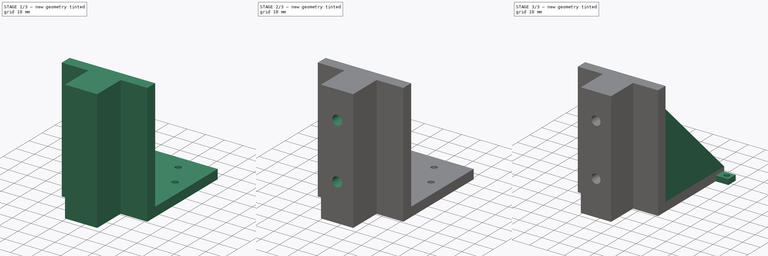
[diagram: build sequence overview — one tinted view per stage of 3, left to right]
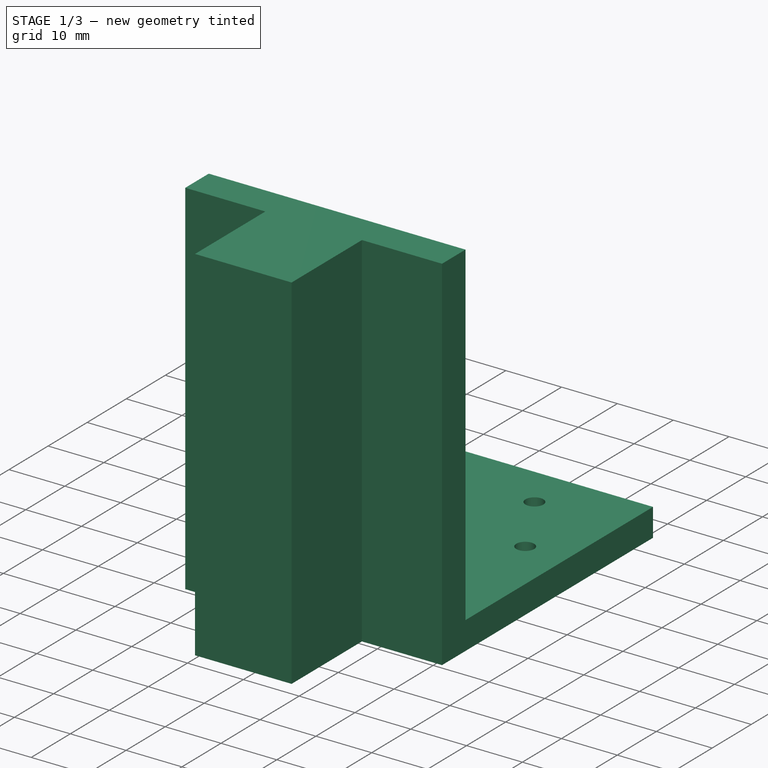
[diagram: stage 1 of 3 — iso view after this stage's code; geometry added in this stage tinted green]
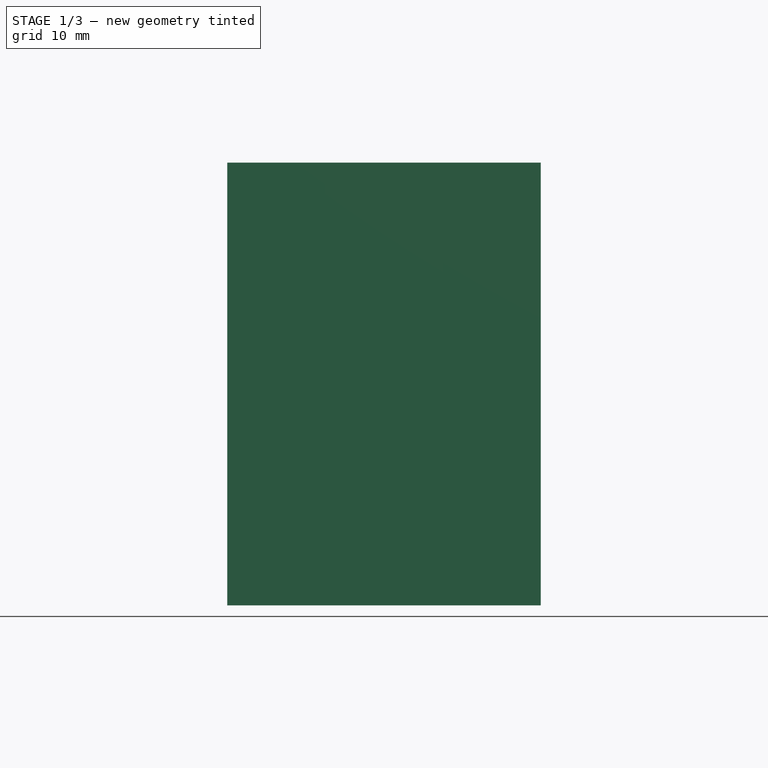
[diagram: stage 1 of 3 — front view after this stage's code; geometry added in this stage tinted green]
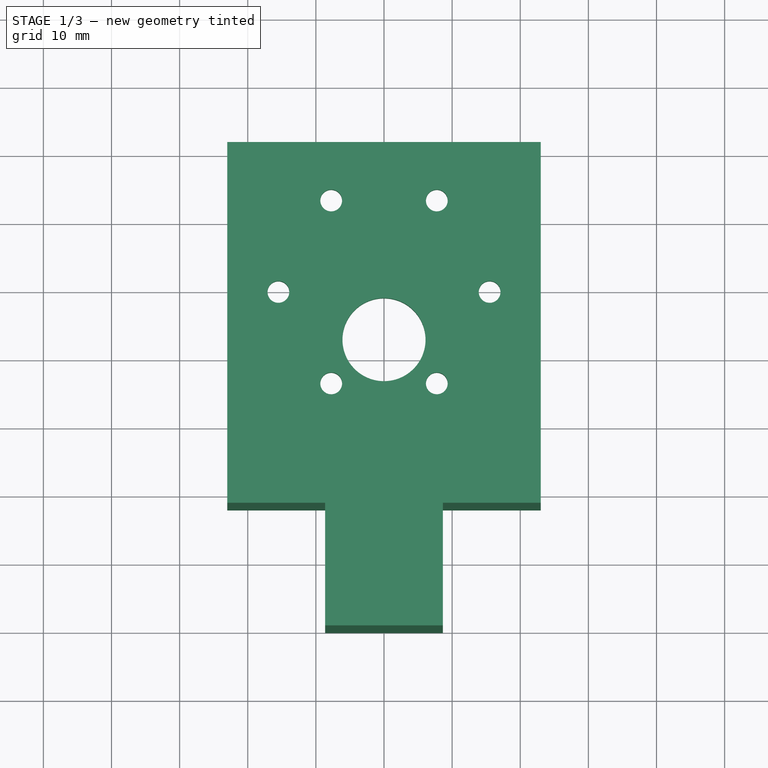
[diagram: stage 1 of 3 — top view after this stage's code; geometry added in this stage tinted green]
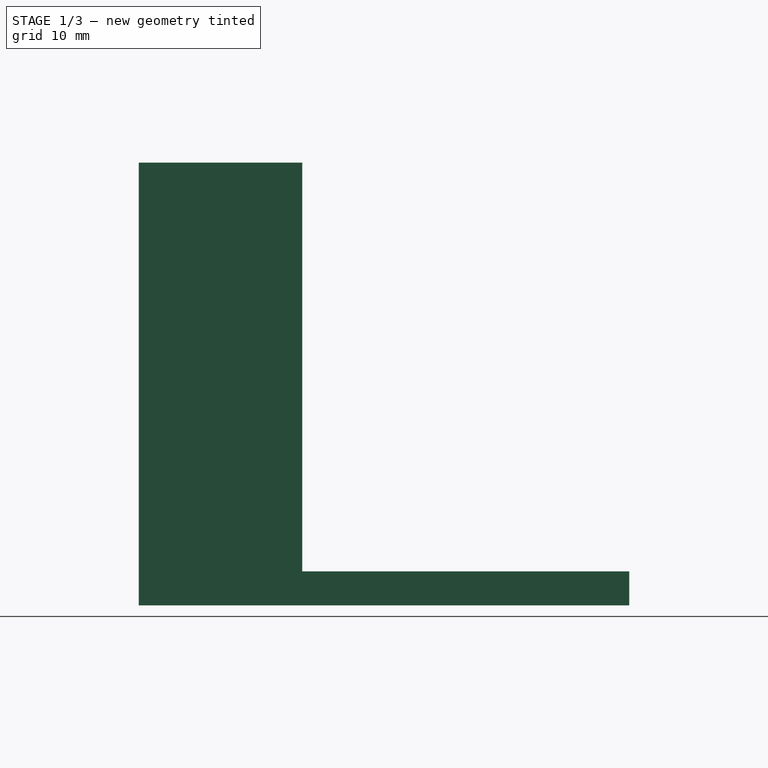
[diagram: stage 1 of 3 — right view after this stage's code; geometry added in this stage tinted green]
FCSTD DOCUMENT  (FreeCAD 0.16R)
Label: motor_holder
License: All rights reserved
LicenseURL: http://en.wikipedia.org/wiki/All_rights_reserved
objects: Sketcher::SketchObject×8, PartDesign::Pad×6, PartDesign::Pocket×2
note: 24 computed .brp shape members not serialized (recipe doc carries the construction recipe); baked Part::Feature solids carry a one-line shape summary decoded from their .brp

FEATURE [Sketcher::SketchObject] Sketch
  sketch-geometry (18):
    g0: LineSegment StartX=-23 StartY=22 StartZ=0 EndX=23 EndY=22 EndZ=0
    g1: LineSegment StartX=23 StartY=22 StartZ=0 EndX=23 EndY=-26 EndZ=0
    g2: LineSegment StartX=23 StartY=-26 StartZ=0 EndX=-23 EndY=-26 EndZ=0
    g3: LineSegment StartX=-23 StartY=-26 StartZ=0 EndX=-23 EndY=22 EndZ=0
    g4: LineSegment [constr] StartX=15.5 StartY=0 StartZ=0 EndX=7.75 EndY=13.4234 EndZ=0
    g5: LineSegment [constr] StartX=7.75 StartY=13.4234 StartZ=0 EndX=-7.75 EndY=13.4234 EndZ=0
    g6: LineSegment [constr] StartX=-7.75 StartY=13.4234 StartZ=0 EndX=-15.5 EndY=0 EndZ=0
    g7: LineSegment [constr] StartX=-15.5 StartY=0 StartZ=0 EndX=-7.75 EndY=-13.4234 EndZ=0
    g8: LineSegment [constr] StartX=-7.75 StartY=-13.4234 StartZ=0 EndX=7.75 EndY=-13.4234 EndZ=0
    g9: LineSegment [constr] StartX=7.75 StartY=-13.4234 StartZ=0 EndX=15.5 EndY=0 EndZ=0
    g10: Circle [constr] CenterX=0 CenterY=0 CenterZ=0 NormalX=0 NormalY=0 NormalZ=1 Radius=15.5
    g11: Circle CenterX=-7.75 CenterY=13.4234 CenterZ=0 NormalX=0 NormalY=0 NormalZ=1 Radius=1.6
    g12: Circle CenterX=7.75 CenterY=13.4234 CenterZ=0 NormalX=0 NormalY=0 NormalZ=1 Radius=1.6
    g13: Circle CenterX=-15.5 CenterY=0 CenterZ=0 NormalX=0 NormalY=0 NormalZ=1 Radius=1.6
    g14: Circle CenterX=-7.75 CenterY=-13.4234 CenterZ=0 NormalX=0 NormalY=0 NormalZ=1 Radius=1.6
    g15: Circle CenterX=7.75 CenterY=-13.4234 CenterZ=0 NormalX=0 NormalY=0 NormalZ=1 Radius=1.6
    g16: Circle CenterX=15.5 CenterY=0 CenterZ=0 NormalX=0 NormalY=0 NormalZ=1 Radius=1.6
    g17: Circle CenterX=0 CenterY=-7 CenterZ=0 NormalX=0 NormalY=0 NormalZ=1 Radius=6.1
  constraints (43):
    c: Coincident(g0,g1)
    c: Coincident(g1,g2)
    c: Coincident(g2,g3)
    c: Coincident(g3,g0)
    c: Horizontal(g0)
    c: Horizontal(g2)
    c: Vertical(g1)
    c: Vertical(g3)
    c: Symmetric(g0,g0,g-2)
    c: DistanceX(g0,g0) = 46
    c: DistanceY(g3,g3) = 48
    c: Coincident(g4,g5)
    c: Coincident(g5,g6)
    c: Coincident(g6,g7)
    c: Coincident(g7,g8)
    c: Coincident(g8,g9)
    c: Coincident(g9,g4)
    c: Equal(g4, g5-g9) x5
    c: PointOnObject(g4,g10)
    c: PointOnObject(g5,g10)
    c: PointOnObject(g6,g10)
    c: PointOnObject(g7,g10)
    c: PointOnObject(g8,g10)
    c: PointOnObject(g9,g10)
    c: Coincident(g10,g-1)
    c: Horizontal(g8)
    c: Radius(g10) = 15.5
    c: DistanceY(g0) = 22
    c: Coincident(g11,g5)
    c: Coincident(g12,g4)
    c: Coincident(g13,g6)
    c: Coincident(g14,g7)
    c: Coincident(g15,g8)
    c: Coincident(g16,g4)
    c: Equal(g11,g12)
    c: Equal(g12,g13)
    c: Equal(g13,g16)
    c: Equal(g16,g15)
    c: Equal(g15,g14)
    c: Radius(g12) = 1.6
    c: PointOnObject(g17,g-2)
    c: DistanceY(g17) = -7
    c: Radius(g17) = 6.1
FEATURE [PartDesign::Pad] Pad
  Length = 5
  Length2 = 100
  Sketch = -> Sketch
  Type = 0
FEATURE [Sketcher::SketchObject] Sketch001
  ExternalGeometry = -> [Pad]
  Placement = pos=(0,0,5) rot=(0,0,1;0rad)
  Support = -> Pad [Face13]
  sketch-geometry (4):
    g0: LineSegment StartX=-23 StartY=-26 StartZ=0 EndX=23 EndY=-26 EndZ=0
    g1: LineSegment StartX=23 StartY=-26 StartZ=0 EndX=23 EndY=-32 EndZ=0
    g2: LineSegment StartX=23 StartY=-32 StartZ=0 EndX=-23 EndY=-32 EndZ=0
    g3: LineSegment StartX=-23 StartY=-32 StartZ=0 EndX=-23 EndY=-26 EndZ=0
  constraints (11):
    c: Coincident(g0,g1)
    c: Coincident(g1,g2)
    c: Coincident(g2,g3)
    c: Coincident(g3,g0)
    c: Horizontal(g0)
    c: Horizontal(g2)
    c: Vertical(g1)
    c: Vertical(g3)
    c: Coincident(g0,g-3)
    c: Coincident(g0,g-3)
    c: DistanceY(g1,g1) = -6
FEATURE [PartDesign::Pad] Pad001
  Length = 60
  Length2 = 5
  Sketch = -> Sketch001
  Type = 4
FEATURE [Sketcher::SketchObject] Sketch002
  ExternalGeometry = -> [Pad001]
  Placement = pos=(0,-32,0) rot=(1,0,0;1.5708rad)
  Support = -> Pad001 [Face17]
  sketch-geometry (4):
    g0: LineSegment StartX=-8.65 StartY=65 StartZ=0 EndX=8.65 EndY=65 EndZ=0
    g1: LineSegment StartX=8.65 StartY=65 StartZ=0 EndX=8.65 EndY=0 EndZ=0
    g2: LineSegment StartX=8.65 StartY=0 StartZ=0 EndX=-8.65 EndY=0 EndZ=0
    g3: LineSegment StartX=-8.65 StartY=0 StartZ=0 EndX=-8.65 EndY=65 EndZ=0
  constraints (12):
    c: Coincident(g0,g1)
    c: Coincident(g1,g2)
    c: Coincident(g2,g3)
    c: Coincident(g3,g0)
    c: Horizontal(g0)
    c: Horizontal(g2)
    c: Vertical(g1)
    c: Vertical(g3)
    c: PointOnObject(g1,g-1)
    c: PointOnObject(g0,g-3)
    c: Symmetric(g0,g0,g-2)
    c: DistanceX(g2,g2) = 17.3
FEATURE [PartDesign::Pad] Pad002
  Length = 18
  Length2 = 100
  Sketch = -> Sketch002
  Type = 0
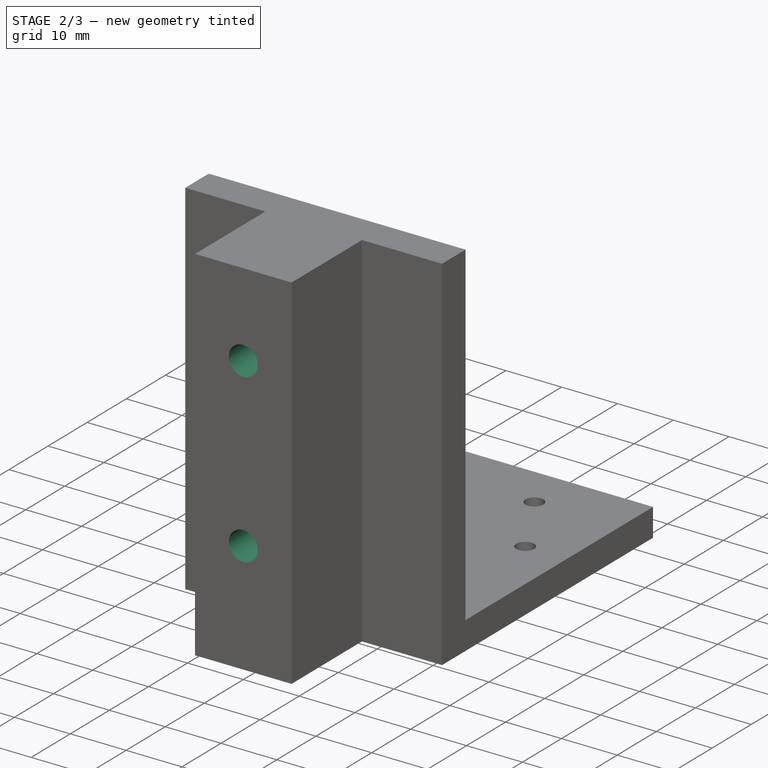
[diagram: stage 2 of 3 — iso view after this stage's code; geometry added in this stage tinted green]
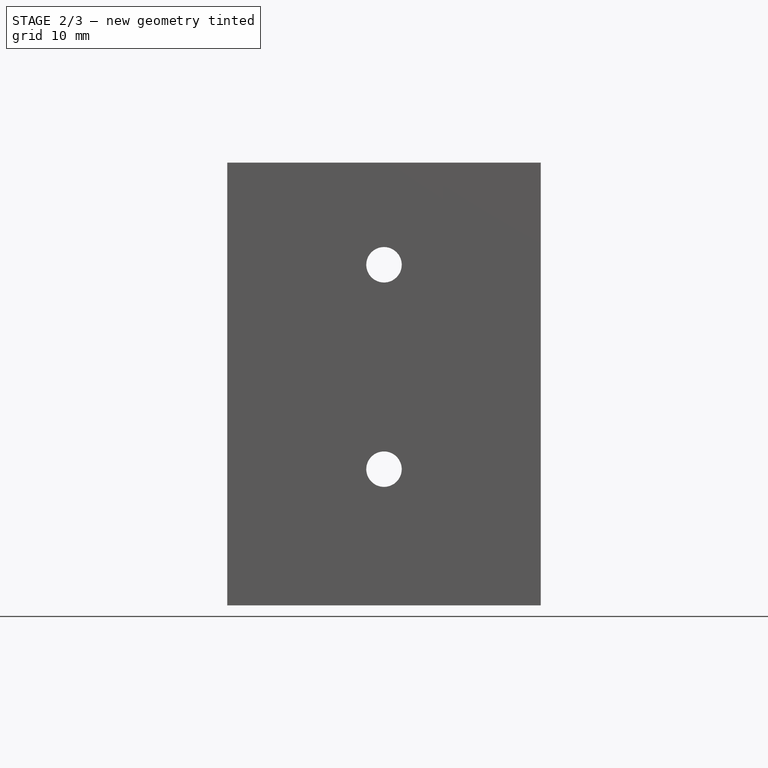
[diagram: stage 2 of 3 — front view after this stage's code; geometry added in this stage tinted green]
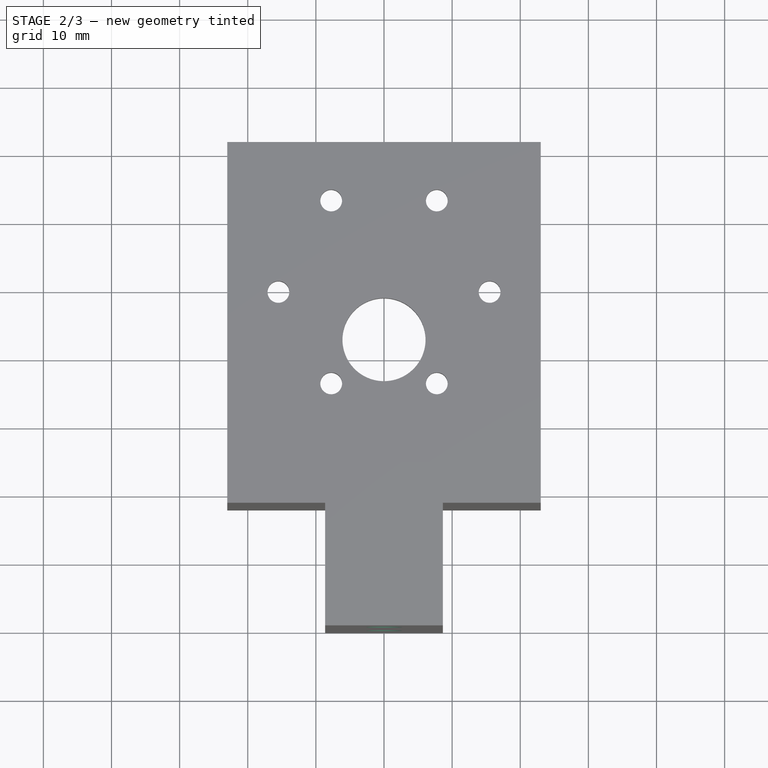
[diagram: stage 2 of 3 — top view after this stage's code; geometry added in this stage tinted green]
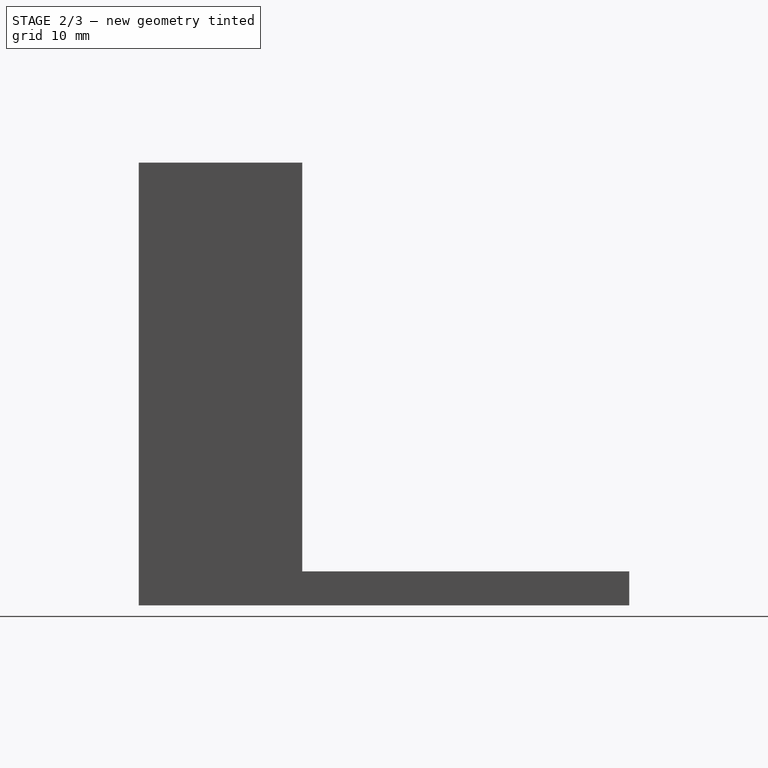
[diagram: stage 2 of 3 — right view after this stage's code; geometry added in this stage tinted green]
FEATURE [Sketcher::SketchObject] Sketch003
  Placement = pos=(0,-26,0) rot=(0,0.707107,0.707107;3.14159rad)
  Support = -> Pad002 [Face16]
  sketch-geometry (14):
    g0: LineSegment StartX=4.5 StartY=50 StartZ=0 EndX=2.25 EndY=53.8971 EndZ=0
    g1: LineSegment StartX=2.25 StartY=53.8971 StartZ=0 EndX=-2.25 EndY=53.8971 EndZ=0
    g2: LineSegment StartX=-2.25 StartY=53.8971 StartZ=0 EndX=-4.5 EndY=50 EndZ=0
    g3: LineSegment StartX=-4.5 StartY=50 StartZ=0 EndX=-2.25 EndY=46.1029 EndZ=0
    g4: LineSegment StartX=-2.25 StartY=46.1029 StartZ=0 EndX=2.25 EndY=46.1029 EndZ=0
    g5: LineSegment StartX=2.25 StartY=46.1029 StartZ=0 EndX=4.5 EndY=50 EndZ=0
    g6: Circle [constr] CenterX=0 CenterY=50 CenterZ=0 NormalX=0 NormalY=0 NormalZ=1 Radius=4.5
    g7: LineSegment StartX=4.5 StartY=20 StartZ=0 EndX=2.25 EndY=23.8971 EndZ=0
    g8: LineSegment StartX=2.25 StartY=23.8971 StartZ=0 EndX=-2.25 EndY=23.8971 EndZ=0
    g9: LineSegment StartX=-2.25 StartY=23.8971 StartZ=0 EndX=-4.5 EndY=20 EndZ=0
    g10: LineSegment StartX=-4.5 StartY=20 StartZ=0 EndX=-2.25 EndY=16.1029 EndZ=0
    g11: LineSegment StartX=-2.25 StartY=16.1029 StartZ=0 EndX=2.25 EndY=16.1029 EndZ=0
    g12: LineSegment StartX=2.25 StartY=16.1029 StartZ=0 EndX=4.5 EndY=20 EndZ=0
    g13: Circle [constr] CenterX=0 CenterY=20 CenterZ=0 NormalX=0 NormalY=0 NormalZ=1 Radius=4.5
  constraints (34):
    c: Coincident(g0,g1)
    c: Coincident(g1,g2)
    c: Coincident(g2,g3)
    c: Coincident(g3,g4)
    c: Coincident(g4,g5)
    c: Coincident(g5,g0)
    c: Equal(g0, g1-g5) x5
    c: PointOnObject(g0,g6)
    c: PointOnObject(g1,g6)
    c: PointOnObject(g2,g6)
    c: PointOnObject(g3,g6)
    c: PointOnObject(g4,g6)
    c: PointOnObject(g5,g6)
    c: PointOnObject(g6,g-2)
    c: Coincident(g7,g8)
    c: Coincident(g8,g9)
    c: Coincident(g9,g10)
    c: Coincident(g10,g11)
    c: Coincident(g11,g12)
    c: Coincident(g12,g7)
    c: Equal(g7, g8-g12) x5
    c: PointOnObject(g7,g13)
    c: PointOnObject(g8,g13)
    c: PointOnObject(g9,g13)
    c: PointOnObject(g10,g13)
    c: PointOnObject(g11,g13)
    c: PointOnObject(g12,g13)
    c: PointOnObject(g13,g-2)
    c: Horizontal(g4)
    c: Horizontal(g8)
    c: Equal(g4,g8)
    c: Radius(g13) = 4.5
    c: Distance(g6,g13) = 30
    c: DistanceY(g13) = 20
FEATURE [PartDesign::Pocket] Pocket
  Length = 8
  Sketch = -> Sketch003
  Type = 0
FEATURE [Sketcher::SketchObject] Sketch004
  Placement = pos=(0,-50,0) rot=(1,0,0;1.5708rad)
  Support = -> Pocket [Face36]
  sketch-geometry (2):
    g0: Circle CenterX=0 CenterY=50 CenterZ=0 NormalX=0 NormalY=0 NormalZ=1 Radius=2.6
    g1: Circle CenterX=0 CenterY=20 CenterZ=0 NormalX=0 NormalY=0 NormalZ=1 Radius=2.6
  constraints (6):
    c: PointOnObject(g0,g-2)
    c: PointOnObject(g1,g-2)
    c: Distance(g1,g0) = 30
    c: DistanceY(g1) = 20
    c: Equal(g0,g1)
    c: Radius(g0) = 2.6
FEATURE [PartDesign::Pocket] Pocket001
  Length = 5
  Sketch = -> Sketch004
  Type = 1
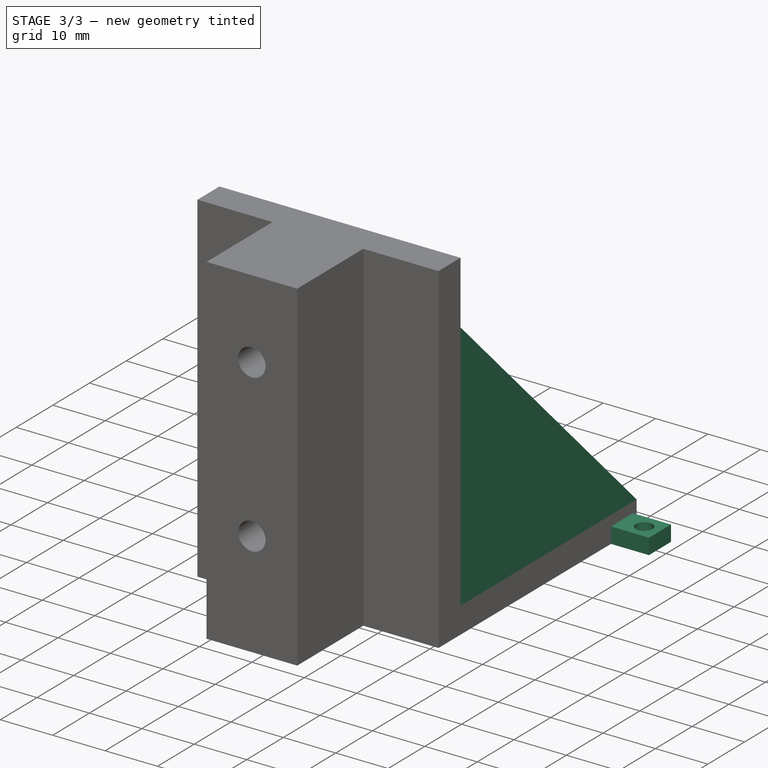
[diagram: stage 3 of 3 — iso view after this stage's code; geometry added in this stage tinted green]
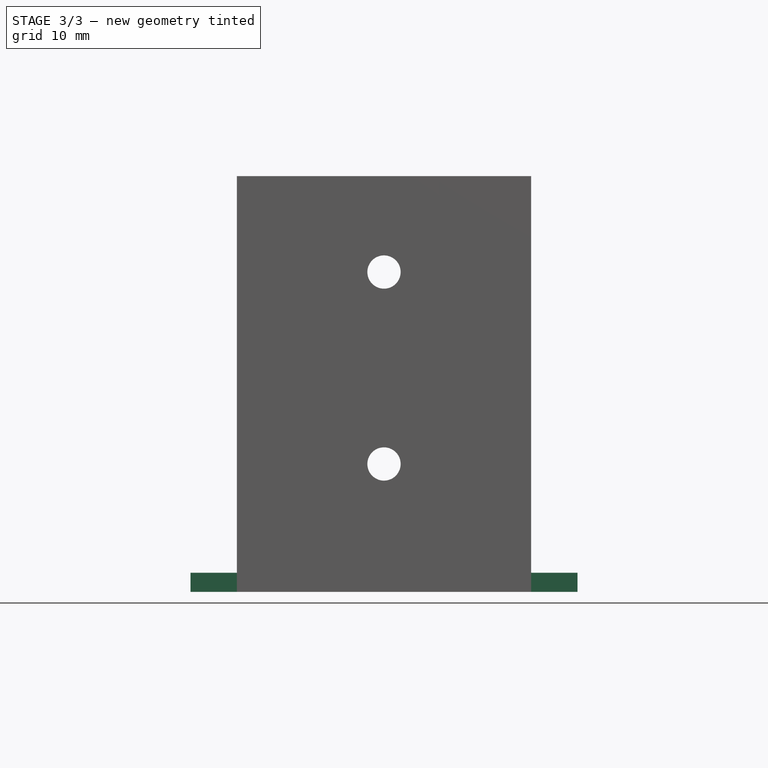
[diagram: stage 3 of 3 — front view after this stage's code; geometry added in this stage tinted green]
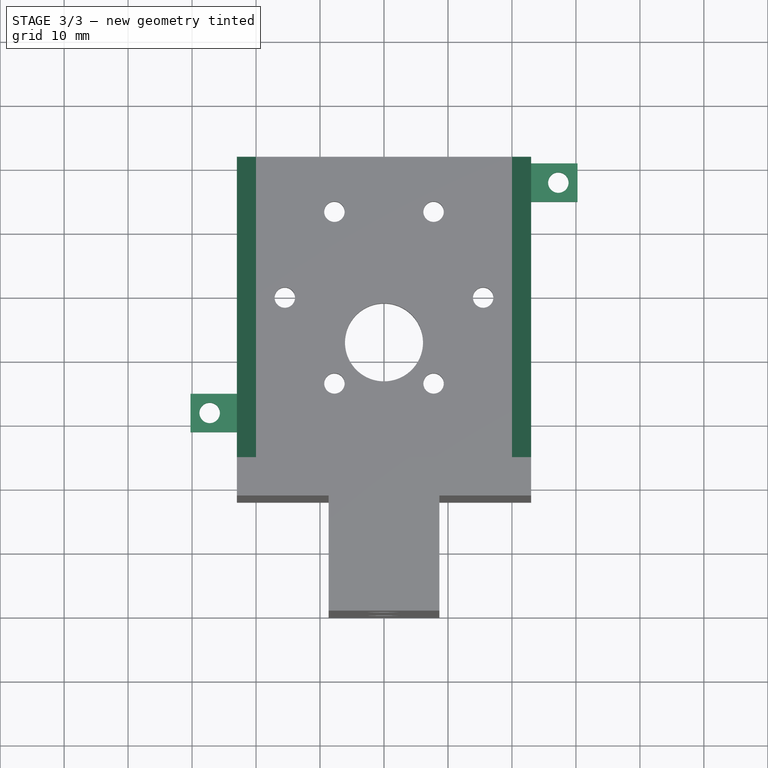
[diagram: stage 3 of 3 — top view after this stage's code; geometry added in this stage tinted green]
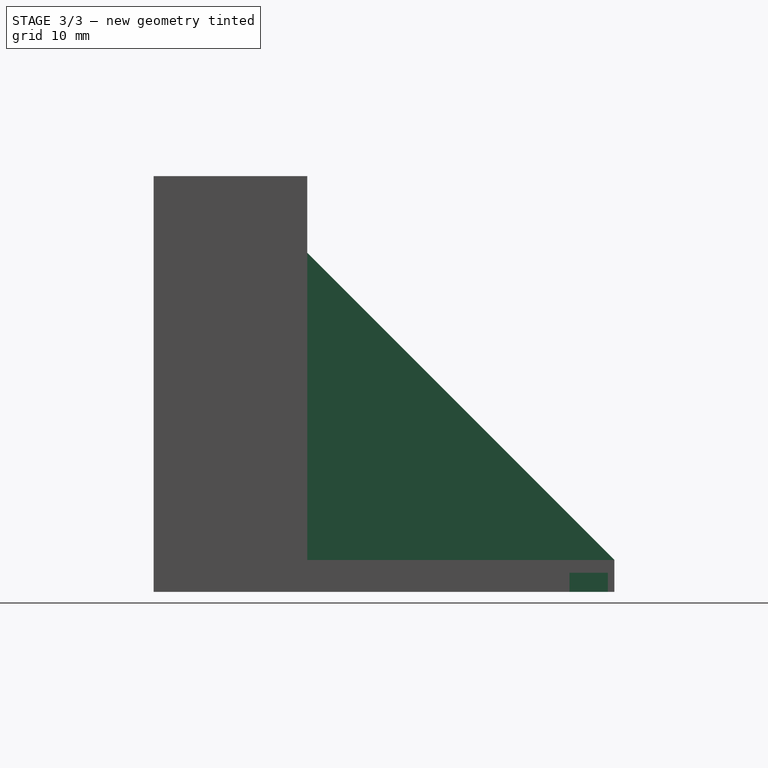
[diagram: stage 3 of 3 — right view after this stage's code; geometry added in this stage tinted green]
FEATURE [Sketcher::SketchObject] Sketch005
  ExternalGeometry = -> [Pocket001]
  Placement = pos=(-23,0,0) rot=(0.57735,-0.57735,-0.57735;2.0944rad)
  Support = -> Pocket001 [Face2]
  sketch-geometry (3):
    g0: LineSegment StartX=-22 StartY=5 StartZ=0 EndX=26 EndY=5 EndZ=0
    g1: LineSegment StartX=26 StartY=5 StartZ=0 EndX=26 EndY=53 EndZ=0
    g2: LineSegment StartX=26 StartY=53 StartZ=0 EndX=-22 EndY=5 EndZ=0
  constraints (7):
    c: Coincident(g-3,g0)
    c: Coincident(g0,g-4)
    c: Coincident(g0,g1)
    c: PointOnObject(g1,g-4)
    c: Coincident(g1,g2)
    c: Coincident(g2,g0)
    c: Equal(g0,g1)
FEATURE [PartDesign::Pad] Pad003
  Length = 3
  Length2 = 100
  Reversed = true
  Sketch = -> Sketch005
  Type = 0
FEATURE [Sketcher::SketchObject] Sketch006
  ExternalGeometry = -> [Pocket001]
  Placement = pos=(23,0,0) rot=(0.57735,0.57735,0.57735;2.0944rad)
  Support = -> Pad003 [Face17]
  sketch-geometry (3):
    g0: LineSegment StartX=22 StartY=5 StartZ=0 EndX=-26 EndY=5 EndZ=0
    g1: LineSegment StartX=-26 StartY=5 StartZ=0 EndX=-26 EndY=53 EndZ=0
    g2: LineSegment StartX=-26 StartY=53 StartZ=0 EndX=22 EndY=5 EndZ=0
  constraints (7):
    c: Coincident(g-3,g0)
    c: Coincident(g0,g-4)
    c: Coincident(g0,g1)
    c: PointOnObject(g1,g-4)
    c: Coincident(g1,g2)
    c: Coincident(g2,g0)
    c: Equal(g0,g1)
FEATURE [PartDesign::Pad] Pad004
  Length = 3
  Length2 = 100
  Reversed = true
  Sketch = -> Sketch006
  Type = 0
FEATURE [Sketcher::SketchObject] Sketch007
  ExternalGeometry = -> [Pad004]
  Placement = pos=(0,0,0) rot=(1,0,0;3.14159rad)
  Support = -> Pad004 [Face1]
  sketch-geometry (10):
    g0: LineSegment StartX=-30.25 StartY=21 StartZ=0 EndX=-23 EndY=21 EndZ=0
    g1: LineSegment StartX=-23 StartY=21 StartZ=0 EndX=-23 EndY=15 EndZ=0
    g2: LineSegment StartX=-23 StartY=15 StartZ=0 EndX=-30.25 EndY=15 EndZ=0
    g3: LineSegment StartX=-30.25 StartY=15 StartZ=0 EndX=-30.25 EndY=21 EndZ=0
    g4: LineSegment StartX=23 StartY=-15 StartZ=0 EndX=30.25 EndY=-15 EndZ=0
    g5: LineSegment StartX=30.25 StartY=-15 StartZ=0 EndX=30.25 EndY=-21 EndZ=0
    g6: LineSegment StartX=30.25 StartY=-21 StartZ=0 EndX=23 EndY=-21 EndZ=0
    g7: LineSegment StartX=23 StartY=-21 StartZ=0 EndX=23 EndY=-15 EndZ=0
    g8: Circle CenterX=-27.25 CenterY=18 CenterZ=0 NormalX=0 NormalY=0 NormalZ=1 Radius=1.6
    g9: Circle CenterX=27.25 CenterY=-18 CenterZ=0 NormalX=0 NormalY=0 NormalZ=1 Radius=1.6
  constraints (30):
    c: Coincident(g0,g1)
    c: Coincident(g1,g2)
    c: Coincident(g2,g3)
    c: Coincident(g3,g0)
    c: Horizontal(g0)
    c: Horizontal(g2)
    c: Vertical(g1)
    c: Vertical(g3)
    c: PointOnObject(g1,g-3)
    c: Coincident(g4,g5)
    c: Coincident(g5,g6)
    c: Coincident(g6,g7)
    c: Coincident(g7,g4)
    c: Horizontal(g4)
    c: Horizontal(g6)
    c: Vertical(g5)
    c: Vertical(g7)
    c: PointOnObject(g4,g-4)
    c: Equal(g3,g5)
    c: DistanceY(g-1,g1) = 15
    c: DistanceY(g4,g-1) = 15
    c: DistanceY(g3,g3) = 6
    c: Equal(g0,g4)
    c: DistanceX(g0,g0) = 7.25
    c: Equal(g9,g8)
    c: Radius(g9) = 1.6
    c: DistanceY(g8) = 18
    c: DistanceY(g9) = -18
    c: Distance(g8,g3) = 3
    c: Distance(g9,g5) = 3
FEATURE [PartDesign::Pad] Pad005
  Length = 3
  Length2 = 100
  Reversed = true
  Sketch = -> Sketch007
  Type = 0
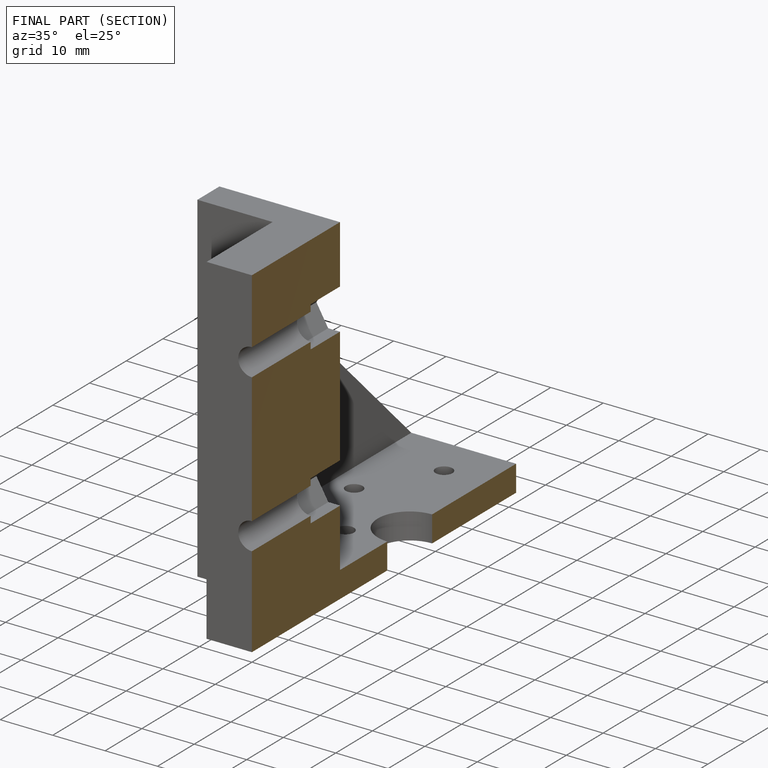
[diagram: finished part — half-section view (interior)]
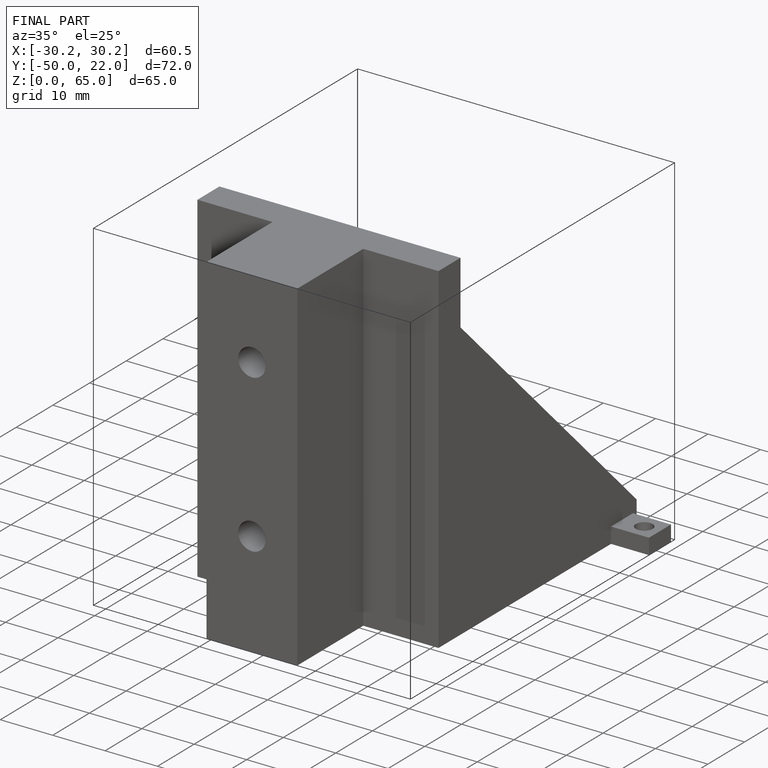
[diagram: finished part — iso view with bounding-box wireframe]
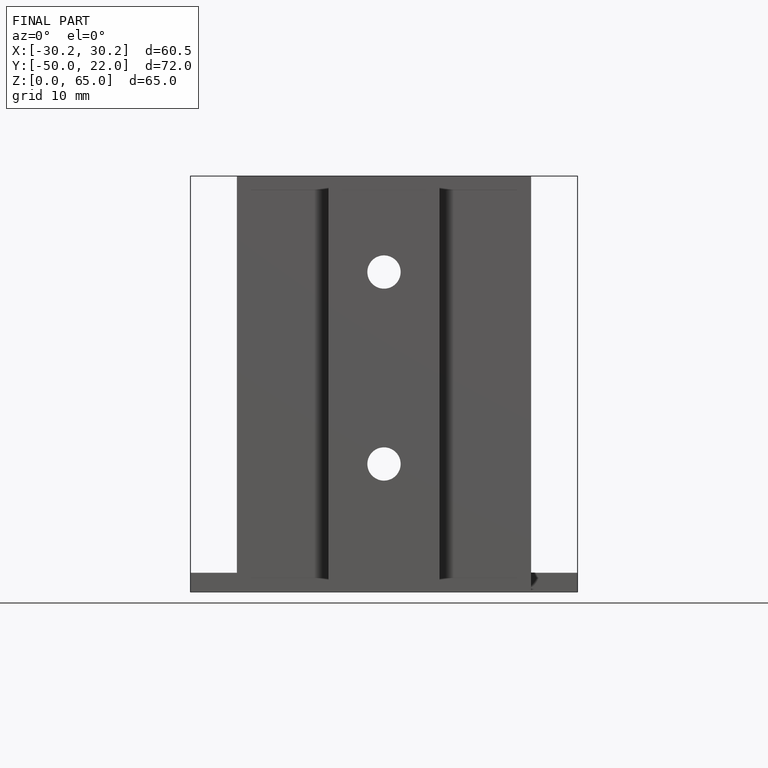
[diagram: finished part — front view with bounding-box wireframe]
